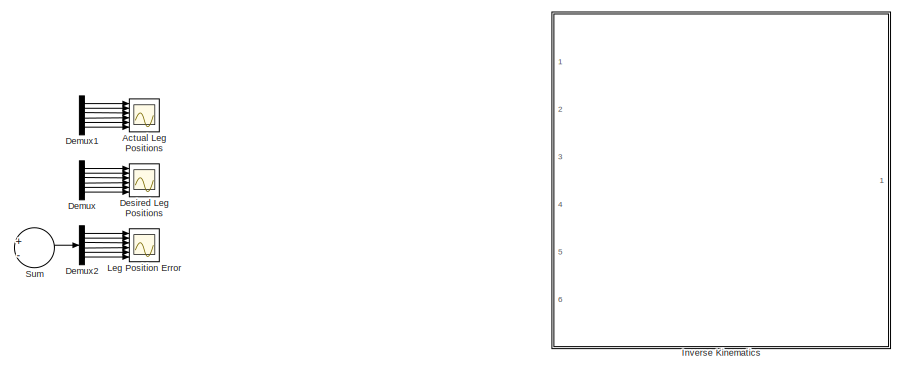
[diagram: root canvas - part 1/3, top right region]
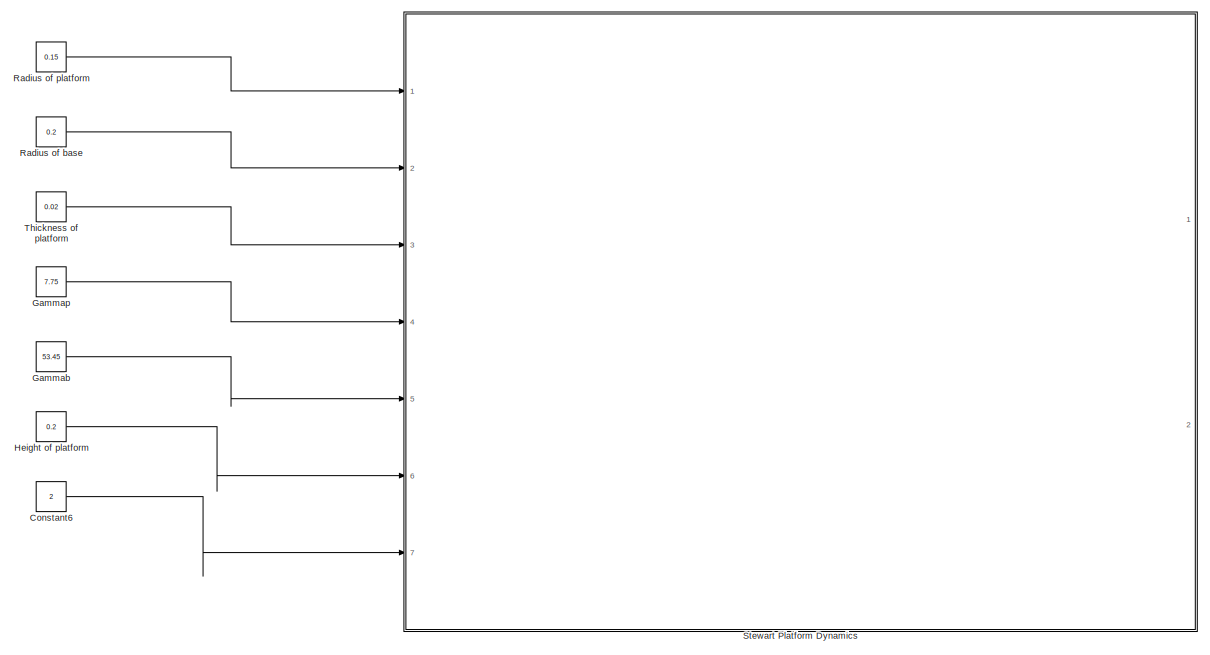
[diagram: root canvas - part 2/3, bottom right region]
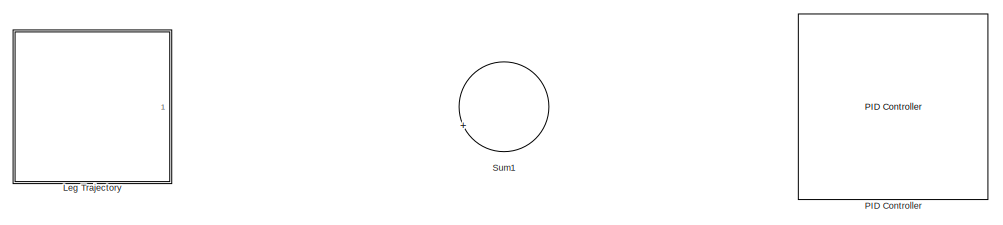
[diagram: root canvas - part 3/3, bottom left region]
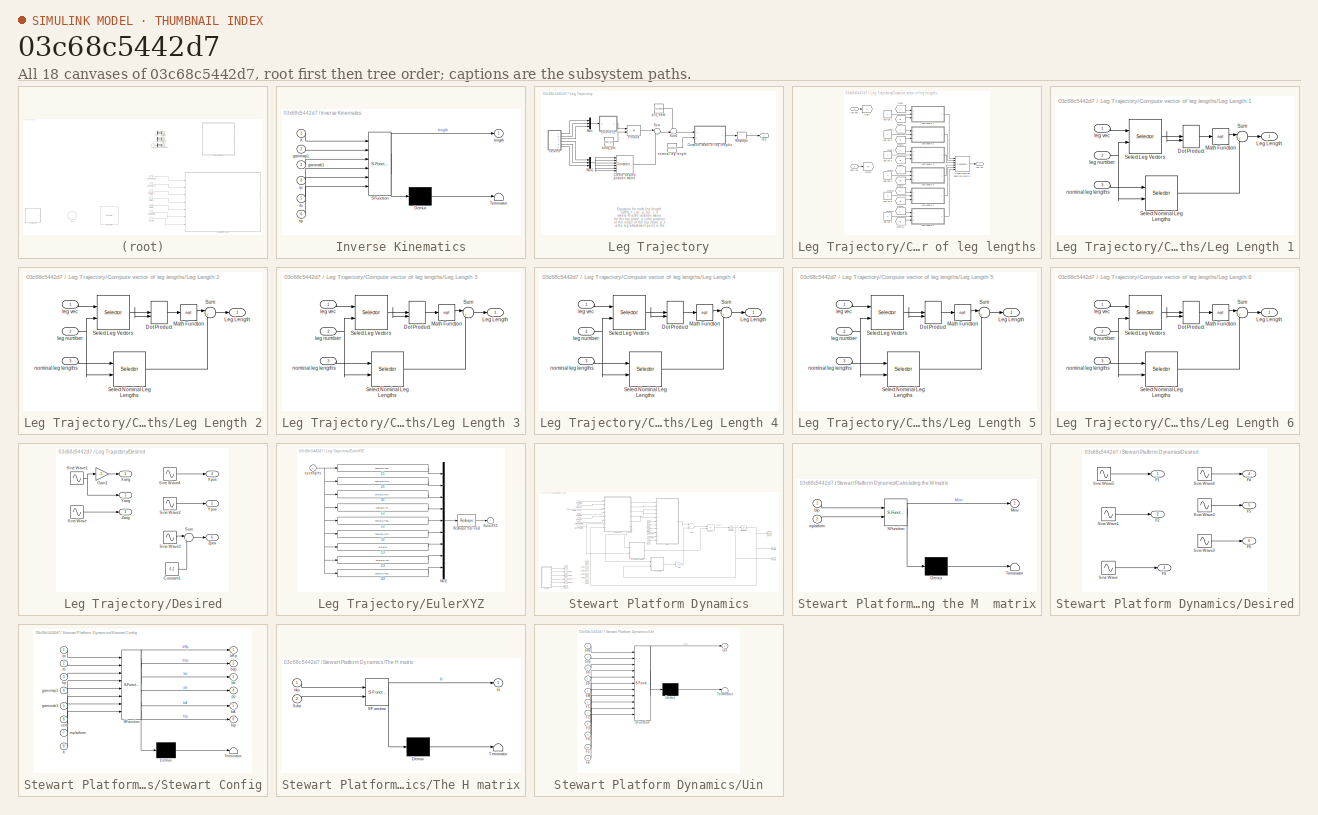
[diagram: thumbnail index - all 18 canvases of the model, root first then tree order]
MODEL slx_03c68c5442d7
KIND model
CONFIG AbsTol = auto
CONFIG FixedStep = auto
CONFIG MaxStep = auto
CONFIG MinStep = auto
CONFIG RelTol = 1e-3
CONFIG SampleTimeConstraint = Unconstrained
CONFIG Solver = ode45
CONFIG SolverMode = Auto
CONFIG SolverName = ode45
CONFIG StartTime = 0.0
CONFIG StopTime = 10.0
BLOCK [Scope] Actual Leg Positions
  DataFormat = StructureWithTime
  Floating = off
  NumInputPorts = 6
  Ports = [6]
  SampleTime = 0
  SaveName = ScopeData5
  TimeRange = 10
  YMax = 14~14~13~14~13~13
  YMin = 0~1~0~0~0~0
BLOCK [Constant] Constant6
  Value = 2
BLOCK [Demux] Demux
  DisplayOption = bar
  Outputs = 6
  Ports = [1, 6]
BLOCK [Demux] Demux1
  DisplayOption = bar
  Outputs = 6
  Ports = [1, 6]
BLOCK [Demux] Demux2
  DisplayOption = bar
  Outputs = 6
  Ports = [1, 6]
BLOCK [Scope] Desired Leg Positions
  DataFormat = StructureWithTime
  Floating = off
  NumInputPorts = 6
  Ports = [6]
  SampleTime = 0
  SaveName = ScopeData4
  YMax = 15~15~13~13~14~14
  YMin = 0~0~0~0~0~0
BLOCK [Constant] Gammab
  Value = 53.45
BLOCK [Constant] Gammap
  Value = 7.75
BLOCK [Constant] Height of platform
  Value = 0.2
BLOCK [SubSystem] Inverse Kinematics
  ErrorFcn = Stateflow.Translate.translate
  PermitHierarchicalResolution = ExplicitOnly
  Ports = [6, 1]
  RequestExecContextInheritance = off
  SFBlockType = MATLAB Function
  TreatAsAtomicUnit = on
BLOCK [Demux] Inverse Kinematics/ Demux 
  Outputs = 1
  Ports = [1, 1]
BLOCK [S-Function] Inverse Kinematics/ SFunction 
  EnableBusSupport = on
  FunctionName = sf_sfun
  PortCounts = [6 2]
  Ports = [6, 2]
  Tag = Stateflow S-Function StewartDynamics 2
BLOCK [Terminator] Inverse Kinematics/ Terminator 
BLOCK [Inport] Inverse Kinematics/X
  IconDisplay = Port number
BLOCK [Inport] Inverse Kinematics/gammab1
  IconDisplay = Port number
  Port = 3
BLOCK [Inport] Inverse Kinematics/gammap1
  IconDisplay = Port number
  Port = 2
BLOCK [Inport] Inverse Kinematics/hp
  IconDisplay = Port number
  Port = 6
BLOCK [Outport] Inverse Kinematics/length
  IconDisplay = Port number
BLOCK [Inport] Inverse Kinematics/rb
  IconDisplay = Port number
  Port = 5
BLOCK [Inport] Inverse Kinematics/rp
  IconDisplay = Port number
  Port = 4
BLOCK [Scope] Leg Position Error
  DataFormat = StructureWithTime
  Floating = off
  NumInputPorts = 6
  Ports = [6]
  SampleTime = 0
  SaveName = ScopeData6
  YMax = 0.2~0.2~0.2~0.2~0.2~0.2
  YMin = -0.2~-0.2~-0.2~-0.2~-0.2~-0.2
  ZoomMode = yonly
BLOCK [SubSystem] Leg Trajectory
  Ports = [0, 1]
  RequestExecContextInheritance = off
BLOCK [SubSystem] Leg Trajectory/Compute vector of leg lengths
  Ports = [2, 1]
  RequestExecContextInheritance = off
  TreatAsAtomicUnit = on
BLOCK [Concatenate] Leg Trajectory/Compute vector of leg lengths/Create desired position matrix
  ConcatenateDimension = 2
  Mode = Multidimensional array
  NumInputs = 6
  Ports = [6, 1]
BLOCK [From] Leg Trajectory/Compute vector of leg lengths/From
  CloseFcn = tagdialog Close
BLOCK [From] Leg Trajectory/Compute vector of leg lengths/From1
  CloseFcn = tagdialog Close
  GotoTag = B
BLOCK [From] Leg Trajectory/Compute vector of leg lengths/From10
  CloseFcn = tagdialog Close
BLOCK [From] Leg Trajectory/Compute vector of leg lengths/From11
  CloseFcn = tagdialog Close
  GotoTag = B
BLOCK [From] Leg Trajectory/Compute vector of leg lengths/From2
  CloseFcn = tagdialog Close
BLOCK [From] Leg Trajectory/Compute vector of leg lengths/From3
  CloseFcn = tagdialog Close
  GotoTag = B
BLOCK [From] Leg Trajectory/Compute vector of leg lengths/From4
  CloseFcn = tagdialog Close
BLOCK [From] Leg Trajectory/Compute vector of leg lengths/From5
  CloseFcn = tagdialog Close
  GotoTag = B
BLOCK [From] Leg Trajectory/Compute vector of leg lengths/From6
  CloseFcn = tagdialog Close
BLOCK [From] Leg Trajectory/Compute vector of leg lengths/From7
  CloseFcn = tagdialog Close
  GotoTag = B
BLOCK [From] Leg Trajectory/Compute vector of leg lengths/From8
  CloseFcn = tagdialog Close
BLOCK [From] Leg Trajectory/Compute vector of leg lengths/From9
  CloseFcn = tagdialog Close
  GotoTag = B
BLOCK [Goto] Leg Trajectory/Compute vector of leg lengths/Goto
BLOCK [Goto] Leg Trajectory/Compute vector of leg lengths/Goto1
  GotoTag = B
BLOCK [SubSystem] Leg Trajectory/Compute vector of leg lengths/Leg Length 1
  Ports = [3, 1]
  RequestExecContextInheritance = off
BLOCK [DotProduct] Leg Trajectory/Compute vector of leg lengths/Leg Length 1/Dot Product
  OutDataTypeStr = Inherit: Inherit via internal rule
BLOCK [Outport] Leg Trajectory/Compute vector of leg lengths/Leg Length 1/Leg Length
  IconDisplay = Port number
BLOCK [Math] Leg Trajectory/Compute vector of leg lengths/Leg Length 1/Math Function
  Operator = sqrt
  Ports = [1, 1]
BLOCK [Selector] Leg Trajectory/Compute vector of leg lengths/Leg Length 1/Select Leg Vectors
  IndexOptions = Select all,Index vector (port)
  Indices = -1,1
  InputPortWidth = 3
  NumberOfDimensions = 2
  Ports = [2, 1]
BLOCK [Selector] Leg Trajectory/Compute vector of leg lengths/Leg Length 1/Select Nominal Leg Lengths
  IndexOptions = Index vector (port)
  Indices = [1 3]
  InputPortWidth = 6
  Ports = [2, 1]
BLOCK [Sum] Leg Trajectory/Compute vector of leg lengths/Leg Length 1/Sum
  IconShape = round
  Inputs = |+-
  Ports = [2, 1]
BLOCK [Inport] Leg Trajectory/Compute vector of leg lengths/Leg Length 1/leg number
  IconDisplay = Port number
  Port = 2
BLOCK [Inport] Leg Trajectory/Compute vector of leg lengths/Leg Length 1/leg vec
  IconDisplay = Port number
BLOCK [Inport] Leg Trajectory/Compute vector of leg lengths/Leg Length 1/nominal leg lengths
  IconDisplay = Port number
  Port = 3
BLOCK [SubSystem] Leg Trajectory/Compute vector of leg lengths/Leg Length 2
  Ports = [3, 1]
  RequestExecContextInheritance = off
BLOCK [DotProduct] Leg Trajectory/Compute vector of leg lengths/Leg Length 2/Dot Product
  OutDataTypeStr = Inherit: Inherit via internal rule
BLOCK [Outport] Leg Trajectory/Compute vector of leg lengths/Leg Length 2/Leg Length
  IconDisplay = Port number
BLOCK [Math] Leg Trajectory/Compute vector of leg lengths/Leg Length 2/Math Function
  Operator = sqrt
  Ports = [1, 1]
BLOCK [Selector] Leg Trajectory/Compute vector of leg lengths/Leg Length 2/Select Leg Vectors
  IndexOptions = Select all,Index vector (port)
  Indices = -1,1
  InputPortWidth = 3
  NumberOfDimensions = 2
  Ports = [2, 1]
BLOCK [Selector] Leg Trajectory/Compute vector of leg lengths/Leg Length 2/Select Nominal Leg Lengths
  IndexOptions = Index vector (port)
  Indices = [1 3]
  InputPortWidth = 6
  Ports = [2, 1]
BLOCK [Sum] Leg Trajectory/Compute vector of leg lengths/Leg Length 2/Sum
  IconShape = round
  Inputs = |+-
  Ports = [2, 1]
BLOCK [Inport] Leg Trajectory/Compute vector of leg lengths/Leg Length 2/leg number
  IconDisplay = Port number
  Port = 2
BLOCK [Inport] Leg Trajectory/Compute vector of leg lengths/Leg Length 2/leg vec
  IconDisplay = Port number
BLOCK [Inport] Leg Trajectory/Compute vector of leg lengths/Leg Length 2/nominal leg lengths
  IconDisplay = Port number
  Port = 3
BLOCK [SubSystem] Leg Trajectory/Compute vector of leg lengths/Leg Length 3
  Ports = [3, 1]
  RequestExecContextInheritance = off
BLOCK [DotProduct] Leg Trajectory/Compute vector of leg lengths/Leg Length 3/Dot Product
  OutDataTypeStr = Inherit: Inherit via internal rule
BLOCK [Outport] Leg Trajectory/Compute vector of leg lengths/Leg Length 3/Leg Length
  IconDisplay = Port number
BLOCK [Math] Leg Trajectory/Compute vector of leg lengths/Leg Length 3/Math Function
  Operator = sqrt
  Ports = [1, 1]
BLOCK [Selector] Leg Trajectory/Compute vector of leg lengths/Leg Length 3/Select Leg Vectors
  IndexOptions = Select all,Index vector (port)
  Indices = -1,1
  InputPortWidth = 3
  NumberOfDimensions = 2
  Ports = [2, 1]
BLOCK [Selector] Leg Trajectory/Compute vector of leg lengths/Leg Length 3/Select Nominal Leg Lengths
  IndexOptions = Index vector (port)
  Indices = [1 3]
  InputPortWidth = 6
  Ports = [2, 1]
BLOCK [Sum] Leg Trajectory/Compute vector of leg lengths/Leg Length 3/Sum
  IconShape = round
  Inputs = |+-
  Ports = [2, 1]
BLOCK [Inport] Leg Trajectory/Compute vector of leg lengths/Leg Length 3/leg number
  IconDisplay = Port number
  Port = 2
BLOCK [Inport] Leg Trajectory/Compute vector of leg lengths/Leg Length 3/leg vec
  IconDisplay = Port number
BLOCK [Inport] Leg Trajectory/Compute vector of leg lengths/Leg Length 3/nominal leg lengths
  IconDisplay = Port number
  Port = 3
BLOCK [SubSystem] Leg Trajectory/Compute vector of leg lengths/Leg Length 4
  Ports = [3, 1]
  RequestExecContextInheritance = off
BLOCK [DotProduct] Leg Trajectory/Compute vector of leg lengths/Leg Length 4/Dot Product
  OutDataTypeStr = Inherit: Inherit via internal rule
BLOCK [Outport] Leg Trajectory/Compute vector of leg lengths/Leg Length 4/Leg Length
  IconDisplay = Port number
BLOCK [Math] Leg Trajectory/Compute vector of leg lengths/Leg Length 4/Math Function
  Operator = sqrt
  Ports = [1, 1]
BLOCK [Selector] Leg Trajectory/Compute vector of leg lengths/Leg Length 4/Select Leg Vectors
  IndexOptions = Select all,Index vector (port)
  Indices = -1,1
  InputPortWidth = 3
  NumberOfDimensions = 2
  Ports = [2, 1]
BLOCK [Selector] Leg Trajectory/Compute vector of leg lengths/Leg Length 4/Select Nominal Leg Lengths
  IndexOptions = Index vector (port)
  Indices = [1 3]
  InputPortWidth = 6
  Ports = [2, 1]
BLOCK [Sum] Leg Trajectory/Compute vector of leg lengths/Leg Length 4/Sum
  IconShape = round
  Inputs = |+-
  Ports = [2, 1]
BLOCK [Inport] Leg Trajectory/Compute vector of leg lengths/Leg Length 4/leg number
  IconDisplay = Port number
  Port = 2
BLOCK [Inport] Leg Trajectory/Compute vector of leg lengths/Leg Length 4/leg vec
  IconDisplay = Port number
BLOCK [Inport] Leg Trajectory/Compute vector of leg lengths/Leg Length 4/nominal leg lengths
  IconDisplay = Port number
  Port = 3
BLOCK [SubSystem] Leg Trajectory/Compute vector of leg lengths/Leg Length 5
  Ports = [3, 1]
  RequestExecContextInheritance = off
BLOCK [DotProduct] Leg Trajectory/Compute vector of leg lengths/Leg Length 5/Dot Product
  OutDataTypeStr = Inherit: Inherit via internal rule
BLOCK [Outport] Leg Trajectory/Compute vector of leg lengths/Leg Length 5/Leg Length
  IconDisplay = Port number
BLOCK [Math] Leg Trajectory/Compute vector of leg lengths/Leg Length 5/Math Function
  Operator = sqrt
  Ports = [1, 1]
BLOCK [Selector] Leg Trajectory/Compute vector of leg lengths/Leg Length 5/Select Leg Vectors
  IndexOptions = Select all,Index vector (port)
  Indices = -1,1
  InputPortWidth = 3
  NumberOfDimensions = 2
  Ports = [2, 1]
BLOCK [Selector] Leg Trajectory/Compute vector of leg lengths/Leg Length 5/Select Nominal Leg Lengths
  IndexOptions = Index vector (port)
  Indices = [1 3]
  InputPortWidth = 6
  Ports = [2, 1]
BLOCK [Sum] Leg Trajectory/Compute vector of leg lengths/Leg Length 5/Sum
  IconShape = round
  Inputs = |+-
  Ports = [2, 1]
BLOCK [Inport] Leg Trajectory/Compute vector of leg lengths/Leg Length 5/leg number
  IconDisplay = Port number
  Port = 2
BLOCK [Inport] Leg Trajectory/Compute vector of leg lengths/Leg Length 5/leg vec
  IconDisplay = Port number
BLOCK [Inport] Leg Trajectory/Compute vector of leg lengths/Leg Length 5/nominal leg lengths
  IconDisplay = Port number
  Port = 3
BLOCK [SubSystem] Leg Trajectory/Compute vector of leg lengths/Leg Length 6
  Ports = [3, 1]
  RequestExecContextInheritance = off
BLOCK [DotProduct] Leg Trajectory/Compute vector of leg lengths/Leg Length 6/Dot Product
  OutDataTypeStr = Inherit: Inherit via internal rule
BLOCK [Outport] Leg Trajectory/Compute vector of leg lengths/Leg Length 6/Leg Length
  IconDisplay = Port number
BLOCK [Math] Leg Trajectory/Compute vector of leg lengths/Leg Length 6/Math Function
  Operator = sqrt
  Ports = [1, 1]
BLOCK [Selector] Leg Trajectory/Compute vector of leg lengths/Leg Length 6/Select Leg Vectors
  IndexOptions = Select all,Index vector (port)
  Indices = -1,1
  InputPortWidth = 3
  NumberOfDimensions = 2
  Ports = [2, 1]
BLOCK [Selector] Leg Trajectory/Compute vector of leg lengths/Leg Length 6/Select Nominal Leg Lengths
  IndexOptions = Index vector (port)
  Indices = [1 3]
  InputPortWidth = 6
  Ports = [2, 1]
BLOCK [Sum] Leg Trajectory/Compute vector of leg lengths/Leg Length 6/Sum
  IconShape = round
  Inputs = |+-
  Ports = [2, 1]
BLOCK [Inport] Leg Trajectory/Compute vector of leg lengths/Leg Length 6/leg number
  IconDisplay = Port number
  Port = 2
BLOCK [Inport] Leg Trajectory/Compute vector of leg lengths/Leg Length 6/leg vec
  IconDisplay = Port number
BLOCK [Inport] Leg Trajectory/Compute vector of leg lengths/Leg Length 6/nominal leg lengths
  IconDisplay = Port number
  Port = 3
BLOCK [Constant] Leg Trajectory/Compute vector of leg lengths/leg idx 1
BLOCK [Constant] Leg Trajectory/Compute vector of leg lengths/leg idx 2
  Value = 2
BLOCK [Constant] Leg Trajectory/Compute vector of leg lengths/leg idx 3
  Value = 3
BLOCK [Constant] Leg Trajectory/Compute vector of leg lengths/leg idx 4
  Value = 4
BLOCK [Constant] Leg Trajectory/Compute vector of leg lengths/leg idx 5
  Value = 5
BLOCK [Constant] Leg Trajectory/Compute vector of leg lengths/leg idx 6
  Value = 6
BLOCK [Outport] Leg Trajectory/Compute vector of leg lengths/leg len
  IconDisplay = Port number
BLOCK [Inport] Leg Trajectory/Compute vector of leg lengths/leg vec
  IconDisplay = Port number
BLOCK [Inport] Leg Trajectory/Compute vector of leg lengths/nom len
  IconDisplay = Port number
  Port = 2
BLOCK [Concatenate] Leg Trajectory/Create desired position matrix
  ConcatenateDimension = 2
  Mode = Multidimensional array
  NumInputs = 6
  Ports = [6, 1]
BLOCK [SubSystem] Leg Trajectory/Desired
  Ports = [0, 6]
  RequestExecContextInheritance = off
BLOCK [Constant] Leg Trajectory/Desired/Constant1
  Value = 0.2
BLOCK [Gain] Leg Trajectory/Desired/Gain1
  Gain = -1
BLOCK [Sin] Leg Trajectory/Desired/Sine Wave
  Amplitude = 0.03
  Frequency = 3
  Ports = [0, 1]
  SampleTime = 0
BLOCK [Sin] Leg Trajectory/Desired/Sine Wave1
  Amplitude = 0.03
  Frequency = 3
  Ports = [0, 1]
  SampleTime = 0
BLOCK [Sin] Leg Trajectory/Desired/Sine Wave2
  Amplitude = 0.025
  Frequency = 3
  Phase = pi/2
  Ports = [0, 1]
  SampleTime = 0
BLOCK [Sin] Leg Trajectory/Desired/Sine Wave3
  Amplitude = 0.025
  Frequency = 3
  Ports = [0, 1]
  SampleTime = 0
BLOCK [Sin] Leg Trajectory/Desired/Sine Wave4
  Amplitude = 0.035
  Frequency = 3
  Ports = [0, 1]
  SampleTime = 0
BLOCK [Sum] Leg Trajectory/Desired/Sum
  IconShape = round
  Inputs = |++
  Ports = [2, 1]
BLOCK [Outport] Leg Trajectory/Desired/Xang
  IconDisplay = Port number
BLOCK [Outport] Leg Trajectory/Desired/Xpos
  IconDisplay = Port number
  Port = 4
BLOCK [Outport] Leg Trajectory/Desired/Yang
  IconDisplay = Port number
  Port = 2
BLOCK [Outport] Leg Trajectory/Desired/Ypos
  IconDisplay = Port number
  Port = 5
BLOCK [Outport] Leg Trajectory/Desired/Zang
  IconDisplay = Port number
  Port = 3
BLOCK [Outport] Leg Trajectory/Desired/Zpos
  IconDisplay = Port number
  Port = 6
BLOCK [SubSystem] Leg Trajectory/EulerXYZ
  AncestorBlock = aerospace/Axes\nTransformations/Direction Cosine Matrix\nfrom Euler Angles
  Ports = [1, 1]
  RequestExecContextInheritance = off
  ShowPortLabels = none
BLOCK [Fcn] Leg Trajectory/EulerXYZ/11
  Expr = cos(u[2])*cos(u[3])
BLOCK [Fcn] Leg Trajectory/EulerXYZ/12
  Expr = -cos(u[2])*sin(u[3])
BLOCK [Fcn] Leg Trajectory/EulerXYZ/13
  Expr = sin(u[2])
BLOCK [Fcn] Leg Trajectory/EulerXYZ/21
  Expr = cos(u[3])*sin(u[2])*sin(u[1])+cos(u[1])*sin(u[3])
BLOCK [Fcn] Leg Trajectory/EulerXYZ/22
  Expr = cos(u[1])*cos(u[3]) - sin(u[1])*sin(u[2])*sin(u[3])
BLOCK [Fcn] Leg Trajectory/EulerXYZ/23
  Expr = -sin(u[1])*cos(u[2])
BLOCK [Fcn] Leg Trajectory/EulerXYZ/31
  Expr = sin(u[1])*sin(u[3]) - cos(u[1])*cos(u[3])*sin(u[2])
BLOCK [Fcn] Leg Trajectory/EulerXYZ/32
  Expr = cos(u[3])*sin(u[1])+cos(u[1])*sin(u[2])*sin(u[3])
BLOCK [Fcn] Leg Trajectory/EulerXYZ/33
  Expr = cos(u[1])*cos(u[2])
BLOCK [Outport] Leg Trajectory/EulerXYZ/EulerXYZ
  IconDisplay = Port number
  InitialOutput = 0
BLOCK [Mux] Leg Trajectory/EulerXYZ/Mux2
  DisplayOption = bar
  Inputs = 9
  Ports = [9, 1]
BLOCK [Reshape] Leg Trajectory/EulerXYZ/Reshape 9x1->3x3
  OutputDimensionality = Customize
  OutputDimensions = [3,3]
  Ports = [1, 1]
BLOCK [Inport] Leg Trajectory/EulerXYZ/x y z angles
  IconDisplay = Port number
BLOCK [Mux] Leg Trajectory/Mux
  DisplayOption = bar
  Inputs = 3
  Ports = [3, 1]
BLOCK [Mux] Leg Trajectory/Mux1
  DisplayOption = bar
  Inputs = 3
  Ports = [3, 1]
BLOCK [Product] Leg Trajectory/Product
  Multiplication = Matrix(*)
  Ports = [2, 1]
  RndMeth = Floor
BLOCK [Reshape] Leg Trajectory/Reshape
  Ports = [1, 1]
BLOCK [Sum] Leg Trajectory/Sum
  IconShape = round
  Inputs = |++
  Ports = [2, 1]
BLOCK [Sum] Leg Trajectory/Sum1
  IconShape = round
  Inputs = -+|
  Ports = [2, 1]
BLOCK [Constant] Leg Trajectory/body_pts
  Value = body_pts
  VectorParams1D = off
BLOCK [Outport] Leg Trajectory/len
  IconDisplay = Port number
BLOCK [Constant] Leg Trajectory/nominal leg length
  Value = leg_length'
  VectorParams1D = off
BLOCK [Constant] Leg Trajectory/pos_base
  Value = pos_base'
  VectorParams1D = off
BLOCK [Reference] PID Controller  REF=simulink/Continuous/PID Controller
  AntiWindupMode = none
  Controller = PID
  ControllerParametersSource = internal
  D = 0
  DGainOutDataTypeStr = Inherit: Inherit via internal rule
  DOutDataTypeStr = Inherit: Inherit via internal rule
  DOutMax = []
  DOutMin = []
  DParamDataTypeStr = Inherit: Inherit via internal rule
  DParamMax = []
  DParamMin = []
  DProdOutDataTypeStr = Inherit: Inherit via internal rule
  DifferentiatorICPrevScaledInput = 0
  DifferentiatorOutDataTypeStr = Inherit: Inherit via internal rule
  DifferentiatorOutMax = []
  DifferentiatorOutMin = []
  ExternalReset = none
  FilterContinuousStateAttributes = ''
  FilterMethod = Forward Euler
  FilterOutDataTypeStr = Inherit: Inherit via internal rule
  FilterOutMax = []
  FilterOutMin = []
  FilterRTWStateStorageClass = Auto
  FilterStateMustResolveToSignalObject = off
  Form = Parallel
  I = 1
  IGainOutDataTypeStr = Inherit: Inherit via internal rule
  IOutDataTypeStr = Inherit: Inherit via internal rule
  IOutMax = []
  IOutMin = []
  IParamDataTypeStr = Inherit: Inherit via internal rule
  IParamMax = []
  IParamMin = []
  IProdOutDataTypeStr = Inherit: Inherit via internal rule
  IgnoreLimit = off
  InitialConditionForFilter = 0
  InitialConditionForIntegrator = 0
  InitialConditionSource = internal
  IntegratorContinuousStateAttributes = ''
  IntegratorMethod = Forward Euler
  IntegratorOutDataTypeStr = Inherit: Inherit via internal rule
  IntegratorOutMax = []
  IntegratorOutMin = []
  IntegratorRTWStateStorageClass = Auto
  IntegratorStateMustResolveToSignalObject = off
  Kb = 1
  KbOutDataTypeStr = Inherit: Inherit via internal rule
  KbOutMax = []
  KbOutMin = []
  KbParamDataTypeStr = Inherit: Inherit via internal rule
  KbParamMax = []
  KbParamMin = []
  Kt = 1
  KtOutDataTypeStr = Inherit: Inherit via internal rule
  KtOutMax = []
  KtOutMin = []
  KtParamDataTypeStr = Inherit: Inherit via internal rule
  KtParamMax = []
  KtParamMin = []
  LimitOutput = off
  LinearizeAsGain = on
  LockScale = off
  LowerSaturationLimit = -inf
  N = 100
  NGainOutDataTypeStr = Inherit: Inherit via internal rule
  NOutDataTypeStr = Inherit: Inherit via internal rule
  NOutMax = []
  NOutMin = []
  NParamDataTypeStr = Inherit: Inherit via internal rule
  NParamMax = []
  NParamMin = []
  NProdOutDataTypeStr = Inherit: Inherit via internal rule
  P = 1
  PGainOutDataTypeStr = Inherit: Inherit via internal rule
  POutDataTypeStr = Inherit: Inherit via internal rule
  POutMax = []
  POutMin = []
  PParamDataTypeStr = Inherit: Inherit via internal rule
  PParamMax = []
  PParamMin = []
  PProdOutDataTypeStr = Inherit: Inherit via internal rule
  Ports = [1, 1]
  RndMeth = Floor
  SampleTime = -1
  SaturateOnIntegerOverflow = off
  SaturationOutDataTypeStr = Inherit: Same as input
  SaturationOutMax = []
  SaturationOutMin = []
  SourceBlock = simulink/Continuous/PID Controller
  SourceType = PID 1dof
  SumAccumDataTypeStr = Inherit: Inherit via internal rule
  SumDAccumDataTypeStr = Inherit: Inherit via internal rule
  SumDOutDataTypeStr = Inherit: Inherit via internal rule
  SumDOutMax = []
  SumDOutMin = []
  SumI1AccumDataTypeStr = Inherit: Inherit via internal rule
  SumI1OutDataTypeStr = Inherit: Inherit via internal rule
  SumI1OutMax = []
  SumI1OutMin = []
  SumI2AccumDataTypeStr = Inherit: Inherit via internal rule
  SumI2OutDataTypeStr = Inherit: Inherit via internal rule
  SumI2OutMax = []
  SumI2OutMin = []
  SumI3AccumDataTypeStr = Inherit: Inherit via internal rule
  SumI3OutDataTypeStr = Inherit: Inherit via internal rule
  SumI3OutMax = []
  SumI3OutMin = []
  SumOutDataTypeStr = Inherit: Inherit via internal rule
  SumOutMax = []
  SumOutMin = []
  TimeDomain = Continuous-time
  TrackingMode = off
  UpperSaturationLimit = inf
  UseFilter = on
  ZeroCross = on
BLOCK [Constant] Radius of base
  Value = 0.2
BLOCK [Constant] Radius of platform
  Value = 0.15
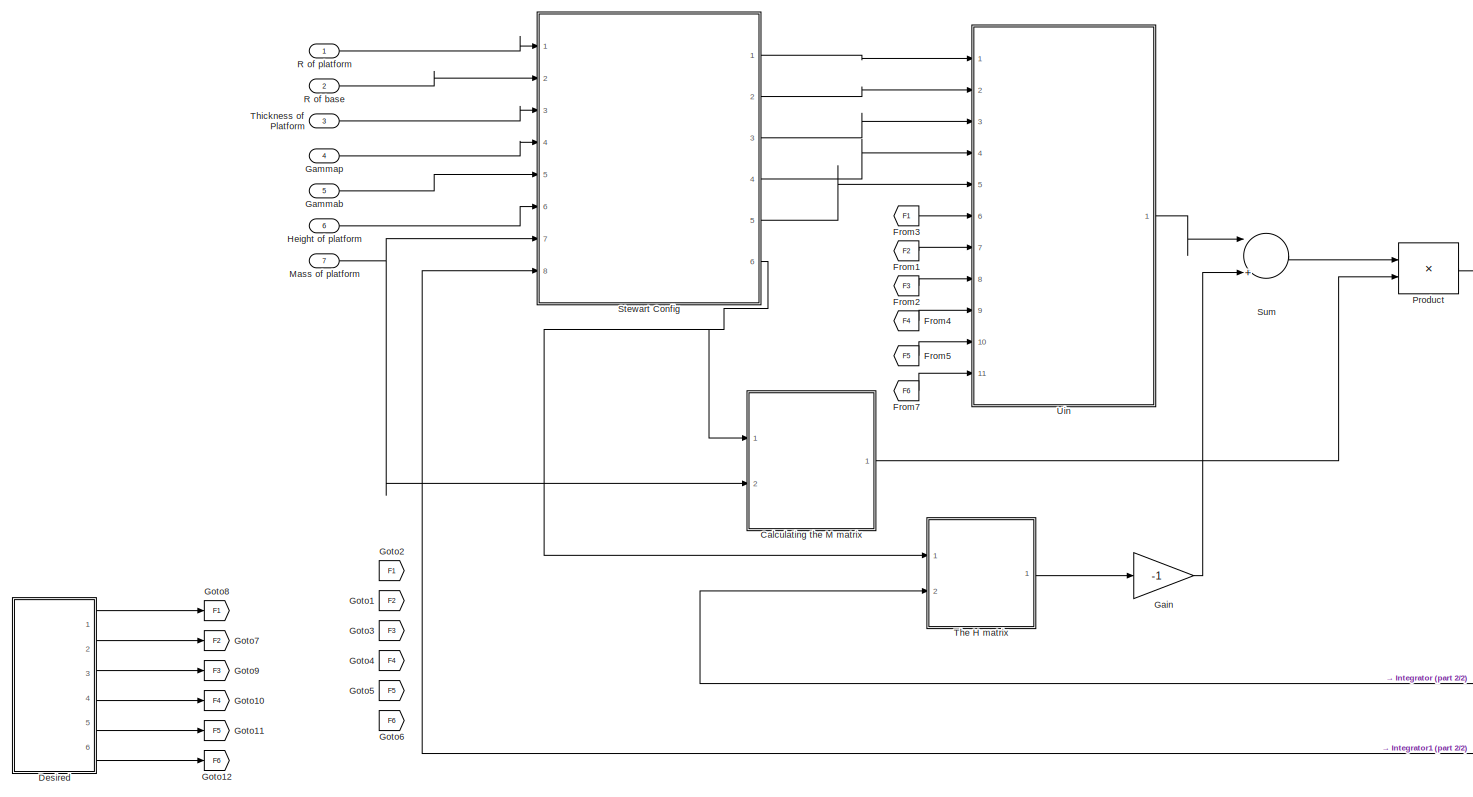
[diagram: Stewart Platform Dynamics - part 1/2, most of the canvas]
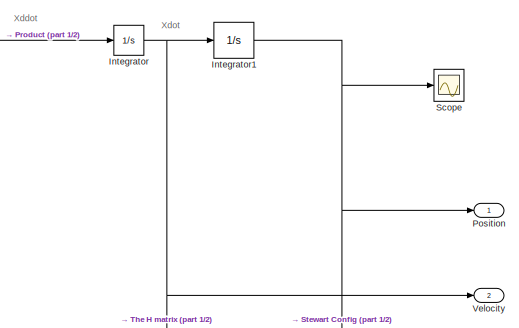
[diagram: Stewart Platform Dynamics - part 2/2, middle right region]
BLOCK [SubSystem] Stewart Platform Dynamics
  Ports = [7, 2]
  RequestExecContextInheritance = off
BLOCK [SubSystem] Stewart Platform Dynamics/Calculating the M  matrix
  ErrorFcn = Stateflow.Translate.translate
  PermitHierarchicalResolution = ExplicitOnly
  Ports = [2, 1]
  RequestExecContextInheritance = off
  SFBlockType = MATLAB Function
  TreatAsAtomicUnit = on
BLOCK [Demux] Stewart Platform Dynamics/Calculating the M  matrix/ Demux 
  Outputs = 1
  Ports = [1, 1]
BLOCK [S-Function] Stewart Platform Dynamics/Calculating the M  matrix/ SFunction 
  EnableBusSupport = on
  FunctionName = sf_sfun
  PortCounts = [2 2]
  Ports = [2, 2]
  Tag = Stateflow S-Function StewartDynamics 4
BLOCK [Terminator] Stewart Platform Dynamics/Calculating the M  matrix/ Terminator 
BLOCK [Outport] Stewart Platform Dynamics/Calculating the M  matrix/Minv
  IconDisplay = Port number
BLOCK [Inport] Stewart Platform Dynamics/Calculating the M  matrix/bIp
  IconDisplay = Port number
BLOCK [Inport] Stewart Platform Dynamics/Calculating the M  matrix/mplatform
  IconDisplay = Port number
  Port = 2
BLOCK [SubSystem] Stewart Platform Dynamics/Desired
  Ports = [0, 6]
  RequestExecContextInheritance = off
BLOCK [Outport] Stewart Platform Dynamics/Desired/F1
  IconDisplay = Port number
BLOCK [Outport] Stewart Platform Dynamics/Desired/F2
  IconDisplay = Port number
  Port = 2
BLOCK [Outport] Stewart Platform Dynamics/Desired/F3
  IconDisplay = Port number
  Port = 3
BLOCK [Outport] Stewart Platform Dynamics/Desired/F4
  IconDisplay = Port number
  Port = 4
BLOCK [Outport] Stewart Platform Dynamics/Desired/F5
  IconDisplay = Port number
  Port = 5
BLOCK [Outport] Stewart Platform Dynamics/Desired/F6
  IconDisplay = Port number
  Port = 6
BLOCK [Sin] Stewart Platform Dynamics/Desired/Sine Wave
  Amplitude = 0.29
  Frequency = 0.6283
  Ports = [0, 1]
  SampleTime = 0
BLOCK [Sin] Stewart Platform Dynamics/Desired/Sine Wave1
  Amplitude = 0.3
  Frequency = 0.628
  Phase = 1.57
  Ports = [0, 1]
  SampleTime = 0
BLOCK [Sin] Stewart Platform Dynamics/Desired/Sine Wave2
  Amplitude = 0.305
  Frequency = 0.6283
  Ports = [0, 1]
  SampleTime = 0
BLOCK [Sin] Stewart Platform Dynamics/Desired/Sine Wave3
  Amplitude = 0.28
  Frequency = 0.6283
  Phase = 1.57
  Ports = [0, 1]
  SampleTime = 0
BLOCK [Sin] Stewart Platform Dynamics/Desired/Sine Wave4
  Amplitude = 0.31
  Frequency = 0.6283
  Phase = 1.57
  Ports = [0, 1]
  SampleTime = 0
BLOCK [Sin] Stewart Platform Dynamics/Desired/Sine Wave5
  Amplitude = 0.3
  Frequency = 0.628
  Ports = [0, 1]
  SampleTime = 0
BLOCK [From] Stewart Platform Dynamics/From1
  CloseFcn = tagdialog Close
  GotoTag = F2
BLOCK [From] Stewart Platform Dynamics/From2
  CloseFcn = tagdialog Close
  GotoTag = F3
BLOCK [From] Stewart Platform Dynamics/From3
  CloseFcn = tagdialog Close
  GotoTag = F1
BLOCK [From] Stewart Platform Dynamics/From4
  CloseFcn = tagdialog Close
  GotoTag = F4
BLOCK [From] Stewart Platform Dynamics/From5
  CloseFcn = tagdialog Close
  GotoTag = F5
BLOCK [From] Stewart Platform Dynamics/From7
  CloseFcn = tagdialog Close
  GotoTag = F6
BLOCK [Gain] Stewart Platform Dynamics/Gain
  Gain = -1
  OutDataTypeStr = Inherit: Inherit via internal rule
  ParamDataTypeStr = Inherit: Inherit via internal rule
  SaturateOnIntegerOverflow = off
BLOCK [Inport] Stewart Platform Dynamics/Gammab
  IconDisplay = Port number
  Port = 5
BLOCK [Inport] Stewart Platform Dynamics/Gammap
  IconDisplay = Port number
  Port = 4
BLOCK [Goto] Stewart Platform Dynamics/Goto1
  GotoTag = F2
BLOCK [Goto] Stewart Platform Dynamics/Goto10
  GotoTag = F4
BLOCK [Goto] Stewart Platform Dynamics/Goto11
  GotoTag = F5
BLOCK [Goto] Stewart Platform Dynamics/Goto12
  GotoTag = F6
BLOCK [Goto] Stewart Platform Dynamics/Goto2
  GotoTag = F1
BLOCK [Goto] Stewart Platform Dynamics/Goto3
  GotoTag = F3
BLOCK [Goto] Stewart Platform Dynamics/Goto4
  GotoTag = F4
BLOCK [Goto] Stewart Platform Dynamics/Goto5
  GotoTag = F5
BLOCK [Goto] Stewart Platform Dynamics/Goto6
  GotoTag = F6
BLOCK [Goto] Stewart Platform Dynamics/Goto7
  GotoTag = F2
BLOCK [Goto] Stewart Platform Dynamics/Goto8
  GotoTag = F1
BLOCK [Goto] Stewart Platform Dynamics/Goto9
  GotoTag = F3
BLOCK [Inport] Stewart Platform Dynamics/Height of platform 
  IconDisplay = Port number
  Port = 6
BLOCK [Integrator] Stewart Platform Dynamics/Integrator
  Ports = [1, 1]
BLOCK [Integrator] Stewart Platform Dynamics/Integrator1
  Ports = [1, 1]
BLOCK [Inport] Stewart Platform Dynamics/Mass of platform
  IconDisplay = Port number
  Port = 7
BLOCK [Outport] Stewart Platform Dynamics/Position
  IconDisplay = Port number
BLOCK [Product] Stewart Platform Dynamics/Product
  InputSameDT = off
  Multiplication = Matrix(*)
  OutDataTypeStr = Inherit: Inherit via internal rule
  Ports = [2, 1]
  RndMeth = Floor
  SaturateOnIntegerOverflow = off
BLOCK [Inport] Stewart Platform Dynamics/R of base
  IconDisplay = Port number
  Port = 2
BLOCK [Inport] Stewart Platform Dynamics/R of platform
  IconDisplay = Port number
BLOCK [Scope] Stewart Platform Dynamics/Scope
  Floating = off
  NumInputPorts = 1
  Ports = [1]
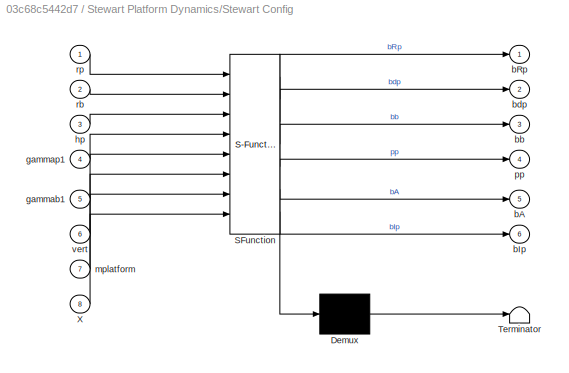
BLOCK [SubSystem] Stewart Platform Dynamics/Stewart Config
  ErrorFcn = Stateflow.Translate.translate
  PermitHierarchicalResolution = ExplicitOnly
  Ports = [8, 6]
  RequestExecContextInheritance = off
  SFBlockType = MATLAB Function
  TreatAsAtomicUnit = on
BLOCK [Demux] Stewart Platform Dynamics/Stewart Config/ Demux 
  Outputs = 1
  Ports = [1, 1]
BLOCK [S-Function] Stewart Platform Dynamics/Stewart Config/ SFunction 
  EnableBusSupport = on
  FunctionName = sf_sfun
  PortCounts = [8 7]
  Ports = [8, 7]
  Tag = Stateflow S-Function StewartDynamics 1
BLOCK [Terminator] Stewart Platform Dynamics/Stewart Config/ Terminator 
BLOCK [Inport] Stewart Platform Dynamics/Stewart Config/X
  IconDisplay = Port number
  Port = 8
BLOCK [Outport] Stewart Platform Dynamics/Stewart Config/bA
  IconDisplay = Port number
  Port = 5
BLOCK [Outport] Stewart Platform Dynamics/Stewart Config/bIp
  IconDisplay = Port number
  Port = 6
BLOCK [Outport] Stewart Platform Dynamics/Stewart Config/bRp
  IconDisplay = Port number
BLOCK [Outport] Stewart Platform Dynamics/Stewart Config/bb
  IconDisplay = Port number
  Port = 3
BLOCK [Outport] Stewart Platform Dynamics/Stewart Config/bdp
  IconDisplay = Port number
  Port = 2
BLOCK [Inport] Stewart Platform Dynamics/Stewart Config/gammab1
  IconDisplay = Port number
  Port = 5
BLOCK [Inport] Stewart Platform Dynamics/Stewart Config/gammap1
  IconDisplay = Port number
  Port = 4
BLOCK [Inport] Stewart Platform Dynamics/Stewart Config/hp
  IconDisplay = Port number
  Port = 3
BLOCK [Inport] Stewart Platform Dynamics/Stewart Config/mplatform
  IconDisplay = Port number
  Port = 7
BLOCK [Outport] Stewart Platform Dynamics/Stewart Config/pp
  IconDisplay = Port number
  Port = 4
BLOCK [Inport] Stewart Platform Dynamics/Stewart Config/rb
  IconDisplay = Port number
  Port = 2
BLOCK [Inport] Stewart Platform Dynamics/Stewart Config/rp
  IconDisplay = Port number
BLOCK [Inport] Stewart Platform Dynamics/Stewart Config/vert
  IconDisplay = Port number
  Port = 6
BLOCK [Sum] Stewart Platform Dynamics/Sum
  InputSameDT = off
  Inputs = |++
  OutDataTypeStr = Inherit: Inherit via internal rule
  Ports = [2, 1]
  SaturateOnIntegerOverflow = off
BLOCK [SubSystem] Stewart Platform Dynamics/The H matrix
  ErrorFcn = Stateflow.Translate.translate
  PermitHierarchicalResolution = ExplicitOnly
  Ports = [2, 1]
  RequestExecContextInheritance = off
  SFBlockType = MATLAB Function
  TreatAsAtomicUnit = on
BLOCK [Demux] Stewart Platform Dynamics/The H matrix/ Demux 
  Outputs = 1
  Ports = [1, 1]
BLOCK [S-Function] Stewart Platform Dynamics/The H matrix/ SFunction 
  EnableBusSupport = on
  FunctionName = sf_sfun
  PortCounts = [2 2]
  Ports = [2, 2]
  Tag = Stateflow S-Function StewartDynamics 5
BLOCK [Terminator] Stewart Platform Dynamics/The H matrix/ Terminator 
BLOCK [Outport] Stewart Platform Dynamics/The H matrix/H
  IconDisplay = Port number
BLOCK [Inport] Stewart Platform Dynamics/The H matrix/Xdot
  IconDisplay = Port number
  Port = 2
BLOCK [Inport] Stewart Platform Dynamics/The H matrix/bIp
  IconDisplay = Port number
BLOCK [Inport] Stewart Platform Dynamics/Thickness of Platform
  IconDisplay = Port number
  Port = 3
BLOCK [SubSystem] Stewart Platform Dynamics/Uin
  ErrorFcn = Stateflow.Translate.translate
  PermitHierarchicalResolution = ExplicitOnly
  Ports = [11, 1]
  RequestExecContextInheritance = off
  SFBlockType = MATLAB Function
  TreatAsAtomicUnit = on
BLOCK [Demux] Stewart Platform Dynamics/Uin/ Demux 
  Outputs = 1
  Ports = [1, 1]
BLOCK [S-Function] Stewart Platform Dynamics/Uin/ SFunction 
  EnableBusSupport = on
  FunctionName = sf_sfun
  PortCounts = [11 2]
  Ports = [11, 2]
  Tag = Stateflow S-Function StewartDynamics 3
BLOCK [Terminator] Stewart Platform Dynamics/Uin/ Terminator 
BLOCK [Inport] Stewart Platform Dynamics/Uin/F1
  IconDisplay = Port number
  Port = 6
BLOCK [Inport] Stewart Platform Dynamics/Uin/F2
  IconDisplay = Port number
  Port = 7
BLOCK [Inport] Stewart Platform Dynamics/Uin/F3
  IconDisplay = Port number
  Port = 8
BLOCK [Inport] Stewart Platform Dynamics/Uin/F4
  IconDisplay = Port number
  Port = 9
BLOCK [Inport] Stewart Platform Dynamics/Uin/F5
  IconDisplay = Port number
  Port = 10
BLOCK [Inport] Stewart Platform Dynamics/Uin/F6
  IconDisplay = Port number
  Port = 11
BLOCK [Outport] Stewart Platform Dynamics/Uin/Uin
  IconDisplay = Port number
BLOCK [Inport] Stewart Platform Dynamics/Uin/bA
  IconDisplay = Port number
  Port = 5
BLOCK [Inport] Stewart Platform Dynamics/Uin/bRp
  IconDisplay = Port number
BLOCK [Inport] Stewart Platform Dynamics/Uin/bb
  IconDisplay = Port number
  Port = 3
BLOCK [Inport] Stewart Platform Dynamics/Uin/bdp
  IconDisplay = Port number
  Port = 2
BLOCK [Inport] Stewart Platform Dynamics/Uin/pp
  IconDisplay = Port number
  Port = 4
BLOCK [Outport] Stewart Platform Dynamics/Velocity
  IconDisplay = Port number
  Port = 2
BLOCK [Sum] Sum
  InputSameDT = off
  Inputs = +-
  OutDataTypeStr = Inherit: Inherit via internal rule
  Ports = [2, 1]
  SaturateOnIntegerOverflow = off
BLOCK [Sum] Sum1
  IconShape = round
  InputSameDT = off
  Inputs = |+-
  OutDataTypeStr = Inherit: Inherit via internal rule
  Ports = [2, 1]
  SaturateOnIntegerOverflow = off
BLOCK [Constant] Thickness of platform
  Value = 0.02
ANNOTATION Leg Trajectory: Equation for each leg length: ||(R*p_t + p) - p_b|| - l_n where R is the rotation matrix for the top plate, p is the position of the origin of the top plate, p_t is the leg attachment point in the top plate, p_b is the leg attachment point in the base, and l_n is the nominal distance between the top and base attachment points.
ANNOTATION Stewart Platform Dynamics: Xddot
ANNOTATION Stewart Platform Dynamics: Xdot
LINE Constant6:1 -> Stewart Platform Dynamics:7
LINE Demux1:1 -> Actual Leg Positions:1
LINE Demux1:2 -> Actual Leg Positions:2
LINE Demux1:3 -> Actual Leg Positions:3
LINE Demux1:4 -> Actual Leg Positions:4
LINE Demux1:5 -> Actual Leg Positions:5
LINE Demux1:6 -> Actual Leg Positions:6
LINE Demux2:1 -> Leg Position Error:1
LINE Demux2:2 -> Leg Position Error:2
LINE Demux2:3 -> Leg Position Error:3
LINE Demux2:4 -> Leg Position Error:4
LINE Demux2:5 -> Leg Position Error:5
LINE Demux2:6 -> Leg Position Error:6
LINE Demux:1 -> Desired Leg Positions:1
LINE Demux:2 -> Desired Leg Positions:2
LINE Demux:3 -> Desired Leg Positions:3
LINE Demux:4 -> Desired Leg Positions:4
LINE Demux:5 -> Desired Leg Positions:5
LINE Demux:6 -> Desired Leg Positions:6
LINE Gammab:1 -> Stewart Platform Dynamics:5
LINE Gammap:1 -> Stewart Platform Dynamics:4
LINE Height of platform:1 -> Stewart Platform Dynamics:6
LINE Leg Trajectory/Compute vector of leg lengths/Create desired position matrix:1 -> Leg Trajectory/Compute vector of leg lengths/leg len:1
LINE Leg Trajectory/Compute vector of leg lengths/From10:1 -> Leg Trajectory/Compute vector of leg lengths/Leg Length 6:1
LINE Leg Trajectory/Compute vector of leg lengths/From11:1 -> Leg Trajectory/Compute vector of leg lengths/Leg Length 6:3
LINE Leg Trajectory/Compute vector of leg lengths/From1:1 -> Leg Trajectory/Compute vector of leg lengths/Leg Length 1:3
LINE Leg Trajectory/Compute vector of leg lengths/From2:1 -> Leg Trajectory/Compute vector of leg lengths/Leg Length 2:1
LINE Leg Trajectory/Compute vector of leg lengths/From3:1 -> Leg Trajectory/Compute vector of leg lengths/Leg Length 2:3
LINE Leg Trajectory/Compute vector of leg lengths/From4:1 -> Leg Trajectory/Compute vector of leg lengths/Leg Length 3:1
LINE Leg Trajectory/Compute vector of leg lengths/From5:1 -> Leg Trajectory/Compute vector of leg lengths/Leg Length 3:3
LINE Leg Trajectory/Compute vector of leg lengths/From6:1 -> Leg Trajectory/Compute vector of leg lengths/Leg Length 4:1
LINE Leg Trajectory/Compute vector of leg lengths/From7:1 -> Leg Trajectory/Compute vector of leg lengths/Leg Length 4:3
LINE Leg Trajectory/Compute vector of leg lengths/From8:1 -> Leg Trajectory/Compute vector of leg lengths/Leg Length 5:1
LINE Leg Trajectory/Compute vector of leg lengths/From9:1 -> Leg Trajectory/Compute vector of leg lengths/Leg Length 5:3
LINE Leg Trajectory/Compute vector of leg lengths/From:1 -> Leg Trajectory/Compute vector of leg lengths/Leg Length 1:1
LINE Leg Trajectory/Compute vector of leg lengths/Leg Length 1/Dot Product:1 -> Leg Trajectory/Compute vector of leg lengths/Leg Length 1/Math Function:1
LINE Leg Trajectory/Compute vector of leg lengths/Leg Length 1/Math Function:1 -> Leg Trajectory/Compute vector of leg lengths/Leg Length 1/Sum:1
NET Leg Trajectory/Compute vector of leg lengths/Leg Length 1/Select Leg Vectors:1 -> Leg Trajectory/Compute vector of leg lengths/Leg Length 1/Dot Product:1, Leg Trajectory/Compute vector of leg lengths/Leg Length 1/Dot Product:2
LINE Leg Trajectory/Compute vector of leg lengths/Leg Length 1/Select Nominal Leg Lengths:1 -> Leg Trajectory/Compute vector of leg lengths/Leg Length 1/Sum:2
LINE Leg Trajectory/Compute vector of leg lengths/Leg Length 1/Sum:1 -> Leg Trajectory/Compute vector of leg lengths/Leg Length 1/Leg Length:1
NET Leg Trajectory/Compute vector of leg lengths/Leg Length 1/leg number:1 -> Leg Trajectory/Compute vector of leg lengths/Leg Length 1/Select Leg Vectors:2, Leg Trajectory/Compute vector of leg lengths/Leg Length 1/Select Nominal Leg Lengths:2
LINE Leg Trajectory/Compute vector of leg lengths/Leg Length 1/leg vec:1 -> Leg Trajectory/Compute vector of leg lengths/Leg Length 1/Select Leg Vectors:1
LINE Leg Trajectory/Compute vector of leg lengths/Leg Length 1/nominal leg lengths:1 -> Leg Trajectory/Compute vector of leg lengths/Leg Length 1/Select Nominal Leg Lengths:1
LINE Leg Trajectory/Compute vector of leg lengths/Leg Length 1:1 -> Leg Trajectory/Compute vector of leg lengths/Create desired position matrix:1
LINE Leg Trajectory/Compute vector of leg lengths/Leg Length 2/Dot Product:1 -> Leg Trajectory/Compute vector of leg lengths/Leg Length 2/Math Function:1
LINE Leg Trajectory/Compute vector of leg lengths/Leg Length 2/Math Function:1 -> Leg Trajectory/Compute vector of leg lengths/Leg Length 2/Sum:1
NET Leg Trajectory/Compute vector of leg lengths/Leg Length 2/Select Leg Vectors:1 -> Leg Trajectory/Compute vector of leg lengths/Leg Length 2/Dot Product:1, Leg Trajectory/Compute vector of leg lengths/Leg Length 2/Dot Product:2
LINE Leg Trajectory/Compute vector of leg lengths/Leg Length 2/Select Nominal Leg Lengths:1 -> Leg Trajectory/Compute vector of leg lengths/Leg Length 2/Sum:2
LINE Leg Trajectory/Compute vector of leg lengths/Leg Length 2/Sum:1 -> Leg Trajectory/Compute vector of leg lengths/Leg Length 2/Leg Length:1
NET Leg Trajectory/Compute vector of leg lengths/Leg Length 2/leg number:1 -> Leg Trajectory/Compute vector of leg lengths/Leg Length 2/Select Leg Vectors:2, Leg Trajectory/Compute vector of leg lengths/Leg Length 2/Select Nominal Leg Lengths:2
LINE Leg Trajectory/Compute vector of leg lengths/Leg Length 2/leg vec:1 -> Leg Trajectory/Compute vector of leg lengths/Leg Length 2/Select Leg Vectors:1
LINE Leg Trajectory/Compute vector of leg lengths/Leg Length 2/nominal leg lengths:1 -> Leg Trajectory/Compute vector of leg lengths/Leg Length 2/Select Nominal Leg Lengths:1
LINE Leg Trajectory/Compute vector of leg lengths/Leg Length 2:1 -> Leg Trajectory/Compute vector of leg lengths/Create desired position matrix:2
LINE Leg Trajectory/Compute vector of leg lengths/Leg Length 3/Dot Product:1 -> Leg Trajectory/Compute vector of leg lengths/Leg Length 3/Math Function:1
LINE Leg Trajectory/Compute vector of leg lengths/Leg Length 3/Math Function:1 -> Leg Trajectory/Compute vector of leg lengths/Leg Length 3/Sum:1
NET Leg Trajectory/Compute vector of leg lengths/Leg Length 3/Select Leg Vectors:1 -> Leg Trajectory/Compute vector of leg lengths/Leg Length 3/Dot Product:1, Leg Trajectory/Compute vector of leg lengths/Leg Length 3/Dot Product:2
LINE Leg Trajectory/Compute vector of leg lengths/Leg Length 3/Select Nominal Leg Lengths:1 -> Leg Trajectory/Compute vector of leg lengths/Leg Length 3/Sum:2
LINE Leg Trajectory/Compute vector of leg lengths/Leg Length 3/Sum:1 -> Leg Trajectory/Compute vector of leg lengths/Leg Length 3/Leg Length:1
NET Leg Trajectory/Compute vector of leg lengths/Leg Length 3/leg number:1 -> Leg Trajectory/Compute vector of leg lengths/Leg Length 3/Select Leg Vectors:2, Leg Trajectory/Compute vector of leg lengths/Leg Length 3/Select Nominal Leg Lengths:2
LINE Leg Trajectory/Compute vector of leg lengths/Leg Length 3/leg vec:1 -> Leg Trajectory/Compute vector of leg lengths/Leg Length 3/Select Leg Vectors:1
LINE Leg Trajectory/Compute vector of leg lengths/Leg Length 3/nominal leg lengths:1 -> Leg Trajectory/Compute vector of leg lengths/Leg Length 3/Select Nominal Leg Lengths:1
LINE Leg Trajectory/Compute vector of leg lengths/Leg Length 3:1 -> Leg Trajectory/Compute vector of leg lengths/Create desired position matrix:3
LINE Leg Trajectory/Compute vector of leg lengths/Leg Length 4/Dot Product:1 -> Leg Trajectory/Compute vector of leg lengths/Leg Length 4/Math Function:1
LINE Leg Trajectory/Compute vector of leg lengths/Leg Length 4/Math Function:1 -> Leg Trajectory/Compute vector of leg lengths/Leg Length 4/Sum:1
NET Leg Trajectory/Compute vector of leg lengths/Leg Length 4/Select Leg Vectors:1 -> Leg Trajectory/Compute vector of leg lengths/Leg Length 4/Dot Product:1, Leg Trajectory/Compute vector of leg lengths/Leg Length 4/Dot Product:2
LINE Leg Trajectory/Compute vector of leg lengths/Leg Length 4/Select Nominal Leg Lengths:1 -> Leg Trajectory/Compute vector of leg lengths/Leg Length 4/Sum:2
LINE Leg Trajectory/Compute vector of leg lengths/Leg Length 4/Sum:1 -> Leg Trajectory/Compute vector of leg lengths/Leg Length 4/Leg Length:1
NET Leg Trajectory/Compute vector of leg lengths/Leg Length 4/leg number:1 -> Leg Trajectory/Compute vector of leg lengths/Leg Length 4/Select Leg Vectors:2, Leg Trajectory/Compute vector of leg lengths/Leg Length 4/Select Nominal Leg Lengths:2
LINE Leg Trajectory/Compute vector of leg lengths/Leg Length 4/leg vec:1 -> Leg Trajectory/Compute vector of leg lengths/Leg Length 4/Select Leg Vectors:1
LINE Leg Trajectory/Compute vector of leg lengths/Leg Length 4/nominal leg lengths:1 -> Leg Trajectory/Compute vector of leg lengths/Leg Length 4/Select Nominal Leg Lengths:1
LINE Leg Trajectory/Compute vector of leg lengths/Leg Length 4:1 -> Leg Trajectory/Compute vector of leg lengths/Create desired position matrix:4
LINE Leg Trajectory/Compute vector of leg lengths/Leg Length 5/Dot Product:1 -> Leg Trajectory/Compute vector of leg lengths/Leg Length 5/Math Function:1
LINE Leg Trajectory/Compute vector of leg lengths/Leg Length 5/Math Function:1 -> Leg Trajectory/Compute vector of leg lengths/Leg Length 5/Sum:1
NET Leg Trajectory/Compute vector of leg lengths/Leg Length 5/Select Leg Vectors:1 -> Leg Trajectory/Compute vector of leg lengths/Leg Length 5/Dot Product:1, Leg Trajectory/Compute vector of leg lengths/Leg Length 5/Dot Product:2
LINE Leg Trajectory/Compute vector of leg lengths/Leg Length 5/Select Nominal Leg Lengths:1 -> Leg Trajectory/Compute vector of leg lengths/Leg Length 5/Sum:2
LINE Leg Trajectory/Compute vector of leg lengths/Leg Length 5/Sum:1 -> Leg Trajectory/Compute vector of leg lengths/Leg Length 5/Leg Length:1
NET Leg Trajectory/Compute vector of leg lengths/Leg Length 5/leg number:1 -> Leg Trajectory/Compute vector of leg lengths/Leg Length 5/Select Leg Vectors:2, Leg Trajectory/Compute vector of leg lengths/Leg Length 5/Select Nominal Leg Lengths:2
LINE Leg Trajectory/Compute vector of leg lengths/Leg Length 5/leg vec:1 -> Leg Trajectory/Compute vector of leg lengths/Leg Length 5/Select Leg Vectors:1
LINE Leg Trajectory/Compute vector of leg lengths/Leg Length 5/nominal leg lengths:1 -> Leg Trajectory/Compute vector of leg lengths/Leg Length 5/Select Nominal Leg Lengths:1
LINE Leg Trajectory/Compute vector of leg lengths/Leg Length 5:1 -> Leg Trajectory/Compute vector of leg lengths/Create desired position matrix:5
LINE Leg Trajectory/Compute vector of leg lengths/Leg Length 6/Dot Product:1 -> Leg Trajectory/Compute vector of leg lengths/Leg Length 6/Math Function:1
LINE Leg Trajectory/Compute vector of leg lengths/Leg Length 6/Math Function:1 -> Leg Trajectory/Compute vector of leg lengths/Leg Length 6/Sum:1
NET Leg Trajectory/Compute vector of leg lengths/Leg Length 6/Select Leg Vectors:1 -> Leg Trajectory/Compute vector of leg lengths/Leg Length 6/Dot Product:1, Leg Trajectory/Compute vector of leg lengths/Leg Length 6/Dot Product:2
LINE Leg Trajectory/Compute vector of leg lengths/Leg Length 6/Select Nominal Leg Lengths:1 -> Leg Trajectory/Compute vector of leg lengths/Leg Length 6/Sum:2
LINE Leg Trajectory/Compute vector of leg lengths/Leg Length 6/Sum:1 -> Leg Trajectory/Compute vector of leg lengths/Leg Length 6/Leg Length:1
NET Leg Trajectory/Compute vector of leg lengths/Leg Length 6/leg number:1 -> Leg Trajectory/Compute vector of leg lengths/Leg Length 6/Select Leg Vectors:2, Leg Trajectory/Compute vector of leg lengths/Leg Length 6/Select Nominal Leg Lengths:2
LINE Leg Trajectory/Compute vector of leg lengths/Leg Length 6/leg vec:1 -> Leg Trajectory/Compute vector of leg lengths/Leg Length 6/Select Leg Vectors:1
LINE Leg Trajectory/Compute vector of leg lengths/Leg Length 6/nominal leg lengths:1 -> Leg Trajectory/Compute vector of leg lengths/Leg Length 6/Select Nominal Leg Lengths:1
LINE Leg Trajectory/Compute vector of leg lengths/Leg Length 6:1 -> Leg Trajectory/Compute vector of leg lengths/Create desired position matrix:6
LINE Leg Trajectory/Compute vector of leg lengths/leg idx 1:1 -> Leg Trajectory/Compute vector of leg lengths/Leg Length 1:2
LINE Leg Trajectory/Compute vector of leg lengths/leg idx 2:1 -> Leg Trajectory/Compute vector of leg lengths/Leg Length 2:2
LINE Leg Trajectory/Compute vector of leg lengths/leg idx 3:1 -> Leg Trajectory/Compute vector of leg lengths/Leg Length 3:2
LINE Leg Trajectory/Compute vector of leg lengths/leg idx 4:1 -> Leg Trajectory/Compute vector of leg lengths/Leg Length 4:2
LINE Leg Trajectory/Compute vector of leg lengths/leg idx 5:1 -> Leg Trajectory/Compute vector of leg lengths/Leg Length 5:2
LINE Leg Trajectory/Compute vector of leg lengths/leg idx 6:1 -> Leg Trajectory/Compute vector of leg lengths/Leg Length 6:2
LINE Leg Trajectory/Compute vector of leg lengths/leg vec:1 -> Leg Trajectory/Compute vector of leg lengths/Goto:1
LINE Leg Trajectory/Compute vector of leg lengths/nom len:1 -> Leg Trajectory/Compute vector of leg lengths/Goto1:1
LINE Leg Trajectory/Compute vector of leg lengths:1 -> Leg Trajectory/Reshape:1
LINE Leg Trajectory/Create desired position matrix:1 -> Leg Trajectory/Sum:2
LINE Leg Trajectory/Desired/Constant1:1 -> Leg Trajectory/Desired/Sum:2
LINE Leg Trajectory/Desired/Gain1:1 -> Leg Trajectory/Desired/Xang:1
NET Leg Trajectory/Desired/Sine Wave1:1 -> Leg Trajectory/Desired/Gain1:1, Leg Trajectory/Desired/Yang:1
LINE Leg Trajectory/Desired/Sine Wave2:1 -> Leg Trajectory/Desired/Ypos:1
LINE Leg Trajectory/Desired/Sine Wave3:1 -> Leg Trajectory/Desired/Sum:1
LINE Leg Trajectory/Desired/Sine Wave4:1 -> Leg Trajectory/Desired/Xpos:1
LINE Leg Trajectory/Desired/Sine Wave:1 -> Leg Trajectory/Desired/Zang:1
LINE Leg Trajectory/Desired/Sum:1 -> Leg Trajectory/Desired/Zpos:1
LINE Leg Trajectory/Desired:1 -> Leg Trajectory/Mux:1
LINE Leg Trajectory/Desired:2 -> Leg Trajectory/Mux:2
LINE Leg Trajectory/Desired:3 -> Leg Trajectory/Mux:3
LINE Leg Trajectory/Desired:4 -> Leg Trajectory/Mux1:1
LINE Leg Trajectory/Desired:5 -> Leg Trajectory/Mux1:2
LINE Leg Trajectory/Desired:6 -> Leg Trajectory/Mux1:3
LINE Leg Trajectory/EulerXYZ:1 -> Leg Trajectory/Product:1
NET Leg Trajectory/Mux1:1 -> Leg Trajectory/Create desired position matrix:1, Leg Trajectory/Create desired position matrix:2, Leg Trajectory/Create desired position matrix:3, Leg Trajectory/Create desired position matrix:4, Leg Trajectory/Create desired position matrix:5, Leg Trajectory/Create desired position matrix:6
LINE Leg Trajectory/Mux:1 -> Leg Trajectory/EulerXYZ:1
LINE Leg Trajectory/Product:1 -> Leg Trajectory/Sum:1
LINE Leg Trajectory/Reshape:1 -> Leg Trajectory/len:1
LINE Leg Trajectory/Sum1:1 -> Leg Trajectory/Compute vector of leg lengths:1
LINE Leg Trajectory/Sum:1 -> Leg Trajectory/Sum1:2
LINE Leg Trajectory/body_pts:1 -> Leg Trajectory/Product:2
LINE Leg Trajectory/nominal leg length:1 -> Leg Trajectory/Compute vector of leg lengths:2
LINE Leg Trajectory/pos_base:1 -> Leg Trajectory/Sum1:1
LINE Radius of base:1 -> Stewart Platform Dynamics:2
LINE Radius of platform:1 -> Stewart Platform Dynamics:1
LINE Stewart Platform Dynamics/Calculating the M  matrix:1 -> Stewart Platform Dynamics/Product:2
LINE Stewart Platform Dynamics/Desired/Sine Wave1:1 -> Stewart Platform Dynamics/Desired/F2:1
LINE Stewart Platform Dynamics/Desired/Sine Wave2:1 -> Stewart Platform Dynamics/Desired/F5:1
LINE Stewart Platform Dynamics/Desired/Sine Wave3:1 -> Stewart Platform Dynamics/Desired/F6:1
LINE Stewart Platform Dynamics/Desired/Sine Wave4:1 -> Stewart Platform Dynamics/Desired/F4:1
LINE Stewart Platform Dynamics/Desired/Sine Wave5:1 -> Stewart Platform Dynamics/Desired/F1:1
LINE Stewart Platform Dynamics/Desired/Sine Wave:1 -> Stewart Platform Dynamics/Desired/F3:1
LINE Stewart Platform Dynamics/Desired:1 -> Stewart Platform Dynamics/Goto8:1
LINE Stewart Platform Dynamics/Desired:2 -> Stewart Platform Dynamics/Goto7:1
LINE Stewart Platform Dynamics/Desired:3 -> Stewart Platform Dynamics/Goto9:1
LINE Stewart Platform Dynamics/Desired:4 -> Stewart Platform Dynamics/Goto10:1
LINE Stewart Platform Dynamics/Desired:5 -> Stewart Platform Dynamics/Goto11:1
LINE Stewart Platform Dynamics/Desired:6 -> Stewart Platform Dynamics/Goto12:1
LINE Stewart Platform Dynamics/From1:1 -> Stewart Platform Dynamics/Uin:7
LINE Stewart Platform Dynamics/From2:1 -> Stewart Platform Dynamics/Uin:8
LINE Stewart Platform Dynamics/From3:1 -> Stewart Platform Dynamics/Uin:6
LINE Stewart Platform Dynamics/From4:1 -> Stewart Platform Dynamics/Uin:9
LINE Stewart Platform Dynamics/From5:1 -> Stewart Platform Dynamics/Uin:10
LINE Stewart Platform Dynamics/From7:1 -> Stewart Platform Dynamics/Uin:11
LINE Stewart Platform Dynamics/Gain:1 -> Stewart Platform Dynamics/Sum:2
LINE Stewart Platform Dynamics/Gammab:1 -> Stewart Platform Dynamics/Stewart Config:5
LINE Stewart Platform Dynamics/Gammap:1 -> Stewart Platform Dynamics/Stewart Config:4
LINE Stewart Platform Dynamics/Height of platform :1 -> Stewart Platform Dynamics/Stewart Config:6
NET Stewart Platform Dynamics/Integrator1:1 -> Stewart Platform Dynamics/Position:1, Stewart Platform Dynamics/Scope:1, Stewart Platform Dynamics/Stewart Config:8
NET Stewart Platform Dynamics/Integrator:1 -> Stewart Platform Dynamics/Integrator1:1, Stewart Platform Dynamics/The H matrix:2, Stewart Platform Dynamics/Velocity:1
NET Stewart Platform Dynamics/Mass of platform:1 -> Stewart Platform Dynamics/Calculating the M  matrix:2, Stewart Platform Dynamics/Stewart Config:7
LINE Stewart Platform Dynamics/Product:1 -> Stewart Platform Dynamics/Integrator:1
LINE Stewart Platform Dynamics/R of base:1 -> Stewart Platform Dynamics/Stewart Config:2
LINE Stewart Platform Dynamics/R of platform:1 -> Stewart Platform Dynamics/Stewart Config:1
LINE Stewart Platform Dynamics/Stewart Config:1 -> Stewart Platform Dynamics/Uin:1
LINE Stewart Platform Dynamics/Stewart Config:2 -> Stewart Platform Dynamics/Uin:2
LINE Stewart Platform Dynamics/Stewart Config:3 -> Stewart Platform Dynamics/Uin:3
LINE Stewart Platform Dynamics/Stewart Config:4 -> Stewart Platform Dynamics/Uin:4
LINE Stewart Platform Dynamics/Stewart Config:5 -> Stewart Platform Dynamics/Uin:5
NET Stewart Platform Dynamics/Stewart Config:6 -> Stewart Platform Dynamics/Calculating the M  matrix:1, Stewart Platform Dynamics/The H matrix:1
LINE Stewart Platform Dynamics/Sum:1 -> Stewart Platform Dynamics/Product:1
LINE Stewart Platform Dynamics/The H matrix:1 -> Stewart Platform Dynamics/Gain:1
LINE Stewart Platform Dynamics/Thickness of Platform:1 -> Stewart Platform Dynamics/Stewart Config:3
LINE Stewart Platform Dynamics/Uin:1 -> Stewart Platform Dynamics/Sum:1
LINE Sum:1 -> Demux2:1
LINE Thickness of platform:1 -> Stewart Platform Dynamics:3
note: NET lines group one-source signal fan-out (src -> all destinations, sorted); 1:1 wires keep LINE
CHART Stewart Platform Dynamics/Stewart Config states=1 transitions=1
  STATE_LABEL 'eML_blk_kernel()'
  STATE_LABEL 'SCRIPT:\nfunction [bRp,bdp,bb,pp,bA,bIp] = fcn(rp,rb,hp,gammap1,gammab1,vert,mplatform,X)\n%#codegen\n%The states that were chosen were X=[x,y,z,phi,theta,psi] and\n%X2=[xdot,ydot,zdot,p,q,r ]\n%Due to this a  trnasformation matrix must be added to transform the body\n%rates to Euler rates.\ngammap = [gammap1,120-gammap1, 120+gammap1, -120-gammap1,-120+gammap1,-gammap1];\ngammab = [gammab1,120-gammab1, 12...<+1618ch>'
CHART Inverse Kinematics states=1 transitions=1
  STATE_LABEL 'eML_blk_kernel()'
  STATE_LABEL 'SCRIPT:\nfunction length = fcn(X,gammap1,gammab1,rp,rb,hp)\n%#codegen\n%Define the system parameters\n\n\ngammap = [gammap1,120-gammap1, 120+gammap1, -120-gammap1,-120+gammap1,-gammap1];\n\n%gammabl = 21.1495 ; % unit in degree\ngammab = [gammab1,120-gammab1, 120+gammab1, -120-gammab1,-120+gammab1,-gammab1];\n\nx=X(1,1);\ny=X(2,1);\nz=X(3,1);\npsi=X(4,1);\nthe=X(5,1);\nphi=X(6,1);\n\nspsi = sin(psi*pi/180 );\ncpsi =...<+920ch>'
CHART Stewart Platform Dynamics/Uin states=1 transitions=1
  STATE_LABEL 'eML_blk_kernel()'
  STATE_LABEL "SCRIPT:\nfunction Uin = fcn(bRp,bdp,bb,pp,bA,F1,F2,F3,F4,F5,F6)\n%#codegen\n    g=9.81;\n    G=[0,0,-g]';\n    Fvec=zeros(3,6);\n    %We are going to add g in vector form to the input force\n   \n    %for j=1:6\n     %  Fvec(:,j)=F(j,a)*bA(:,j);\n    %end\n    Fvec(:,1)=F1*bA(:,1);\n    Fvec(:,2)=F2*bA(:,2);\n    Fvec(:,3)=F3*bA(:,3);\n    Fvec(:,4)=F4*bA(:,4);\n    Fvec(:,5)=F5*bA(:,5);\n    Fvec(:,6)=F6*bA(:,6)...<+669ch>"
CHART Stewart Platform Dynamics/Calculating the M  matrix states=1 transitions=1
  STATE_LABEL 'eML_blk_kernel()'
  STATE_LABEL 'SCRIPT:\nfunction Minv = fcn(bIp,mplatform)\n%#codegen\n\nm=mplatform*(eye(3));\n\nz=zeros(3,3);\n\nM=[m,z;z,bIp];\nMinv=inv(M);\n'
CHART Stewart Platform Dynamics/The H matrix states=1 transitions=1
  STATE_LABEL 'eML_blk_kernel()'
  STATE_LABEL 'SCRIPT:\nfunction H = fcn(bIp,Xdot)\n%#codegen\nbWp = [Xdot(4,1) ; Xdot(5,1) ; Xdot(6,1)] ;\n\nbWpskew=[ 0 , -1*bWp(3,1) , bWp(2,1) ; \n         bWp(3,1) , 0 , -1*bWp(1,1)  ;\n         -1*bWp(2,1), bWp(1,1), 0 ];\n     \n     h= bWpskew*bIp;                             %WxI \n    H=[z,z;z,h];\n\n\n'
